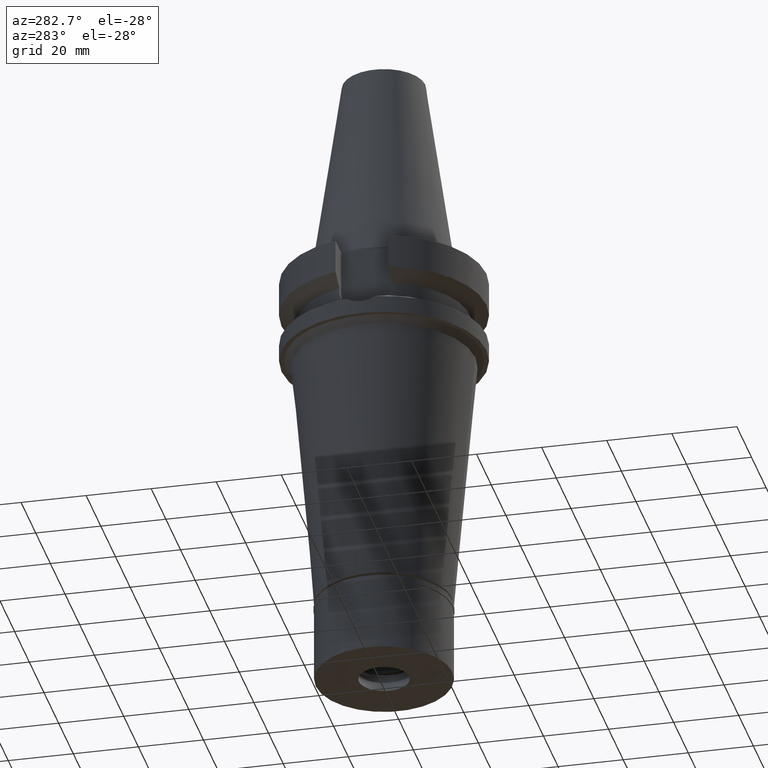
[diagram: clean part render]
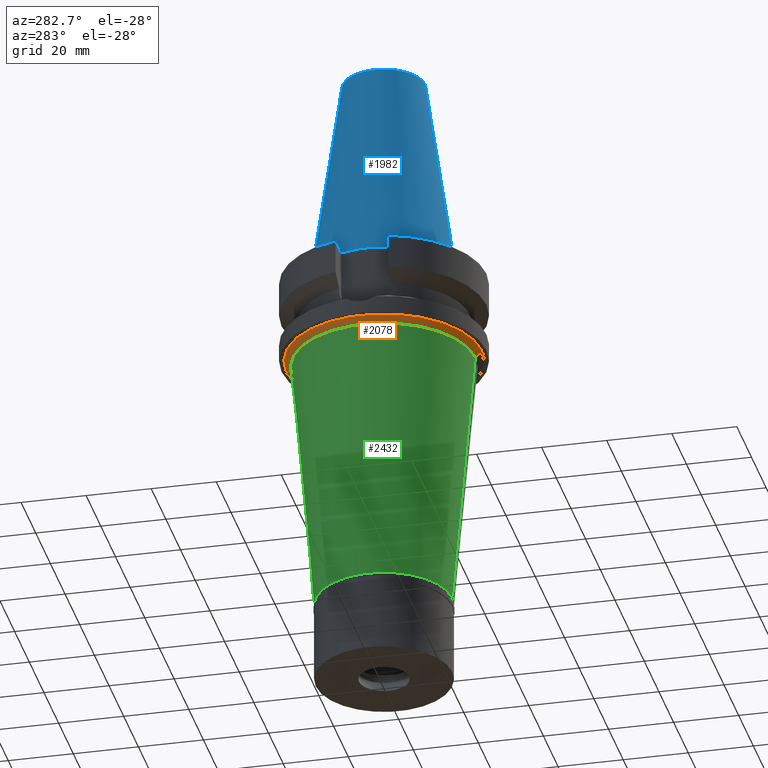
[diagram: same view with three faces highlighted in distinct colors, each labeled with its STEP entity id]
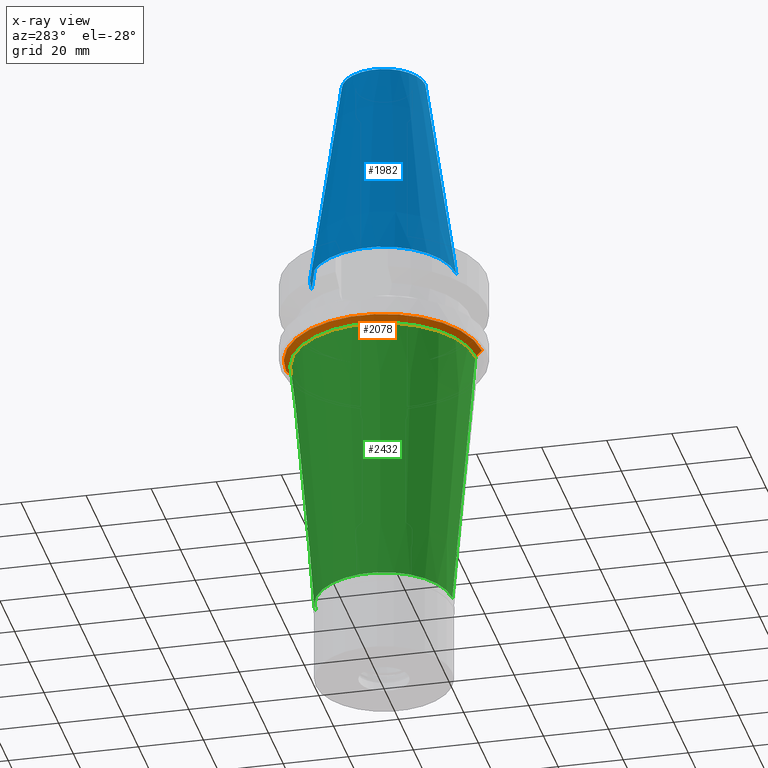
[diagram: x-ray of the same camera — body ghosted, the three highlighted faces saturated]
A machine part, auxiliary view with three faces highlighted in distinct colors.
The next image is the same camera in x-ray (body ghosted, the three faces saturated) — at least one of them is partly hidden behind the body in this view.
Their STEP definitions:

[orange] entity #2078 — the highlighted conical surface has half-angle 45 deg.
#23 = VERTEX_POINT ( 'NONE', #1060 ) ;
#64 = LINE ( 'NONE', #1254, #971 ) ;
#205 = DIRECTION ( 'NONE',  ( 0.0000000000000000000, -1.000000000000000000, 0.0000000000000000000 ) ) ;
#215 = VERTEX_POINT ( 'NONE', #2937 ) ;
#254 = ORIENTED_EDGE ( 'NONE', *, *, #2730, .F. ) ;
#463 = CIRCLE ( 'NONE', #1731, 30.07783287924999627 ) ;
#467 = LINE ( 'NONE', #938, #1740 ) ;
#551 = ORIENTED_EDGE ( 'NONE', *, *, #1288, .F. ) ;
#557 = CIRCLE ( 'NONE', #2355, 28.07783287924999982 ) ;
#659 = EDGE_CURVE ( 'NONE', #1757, #215, #467, .T. ) ;
#784 = DIRECTION ( 'NONE',  ( 0.0000000000000000000, -1.000000000000000000, 0.0000000000000000000 ) ) ;
#840 = EDGE_LOOP ( 'NONE', ( #254, #551, #1630, #2893 ) ) ;
#889 = CARTESIAN_POINT ( 'NONE',  ( 0.0000000000000000000, 0.0000000000000000000, -28.00000000000000000 ) ) ;
#924 = DIRECTION ( 'NONE',  ( 0.0000000000000000000, 0.0000000000000000000, -1.000000000000000000 ) ) ;
#938 = CARTESIAN_POINT ( 'NONE',  ( 0.0000000000000000000, 30.07783287924999627, -27.00000000000000000 ) ) ;
#971 = VECTOR ( 'NONE', #1275, 1000.000000000000000 ) ;
#1060 = CARTESIAN_POINT ( 'NONE',  ( 0.0000000000000000000, -30.07783287924999627, -27.00000000000000000 ) ) ;
#1254 = CARTESIAN_POINT ( 'NONE',  ( 0.0000000000000000000, -30.07783287924999627, -27.00000000000000000 ) ) ;
#1258 = DIRECTION ( 'NONE',  ( 0.0000000000000000000, 0.0000000000000000000, -1.000000000000000000 ) ) ;
#1275 = DIRECTION ( 'NONE',  ( 0.0000000000000000000, 0.7071067811871469821, -0.7071067811859480523 ) ) ;
#1288 = EDGE_CURVE ( 'NONE', #23, #2061, #64, .T. ) ;
#1519 = CARTESIAN_POINT ( 'NONE',  ( 0.0000000000000000000, 0.0000000000000000000, -29.00000000000000000 ) ) ;
#1630 = ORIENTED_EDGE ( 'NONE', *, *, #2470, .T. ) ;
#1641 = DIRECTION ( 'NONE',  ( 0.0000000000000000000, 1.000000000000000000, 0.0000000000000000000 ) ) ;
#1683 = CONICAL_SURFACE ( 'NONE', #2955, 29.07783287924999982, 0.7853981633972997312 ) ;
#1731 = AXIS2_PLACEMENT_3D ( 'NONE', #2504, #1258, #784 ) ;
#1740 = VECTOR ( 'NONE', #1904, 1000.000000000000000 ) ;
#1757 = VERTEX_POINT ( 'NONE', #2224 ) ;
#1878 = CARTESIAN_POINT ( 'NONE',  ( 0.0000000000000000000, -28.07783287924999982, -29.00000000000000000 ) ) ;
#1904 = DIRECTION ( 'NONE',  ( 0.0000000000000000000, -0.7071067811871469821, -0.7071067811859480523 ) ) ;
#2061 = VERTEX_POINT ( 'NONE', #1878 ) ;
#2078 = ADVANCED_FACE ( 'NONE', ( #3076 ), #1683, .T. ) ;
#2224 = CARTESIAN_POINT ( 'NONE',  ( 0.0000000000000000000, 30.07783287924999627, -27.00000000000000000 ) ) ;
#2355 = AXIS2_PLACEMENT_3D ( 'NONE', #1519, #924, #205 ) ;
#2470 = EDGE_CURVE ( 'NONE', #23, #1757, #463, .T. ) ;
#2504 = CARTESIAN_POINT ( 'NONE',  ( 0.0000000000000000000, 0.0000000000000000000, -27.00000000000000000 ) ) ;
#2635 = DIRECTION ( 'NONE',  ( 0.0000000000000000000, 0.0000000000000000000, 1.000000000000000000 ) ) ;
#2730 = EDGE_CURVE ( 'NONE', #2061, #215, #557, .T. ) ;
#2893 = ORIENTED_EDGE ( 'NONE', *, *, #659, .T. ) ;
#2937 = CARTESIAN_POINT ( 'NONE',  ( 0.0000000000000000000, 28.07783287924999982, -29.00000000000000000 ) ) ;
#2955 = AXIS2_PLACEMENT_3D ( 'NONE', #889, #2635, #1641 ) ;
#3076 = FACE_OUTER_BOUND ( 'NONE', #840, .T. ) ;

[blue] entity #1982 — the highlighted conical surface has half-angle 8.297 deg.
#25 = VERTEX_POINT ( 'NONE', #2777 ) ;
#196 = ORIENTED_EDGE ( 'NONE', *, *, #2507, .T. ) ;
#233 = VECTOR ( 'NONE', #883, 1000.000000000000114 ) ;
#306 = AXIS2_PLACEMENT_3D ( 'NONE', #2157, #3120, #1171 ) ;
#316 = CARTESIAN_POINT ( 'NONE',  ( 0.0000000000000000000, 1.625106302469000024E-14, 2.842170943039999687E-14 ) ) ;
#657 = DIRECTION ( 'NONE',  ( 0.0000000000000000000, 0.0000000000000000000, -1.000000000000000000 ) ) ;
#801 = DIRECTION ( 'NONE',  ( 0.0000000000000000000, -1.000000000000000000, 0.0000000000000000000 ) ) ;
#849 = EDGE_CURVE ( 'NONE', #25, #1640, #979, .T. ) ;
#883 = DIRECTION ( 'NONE',  ( 0.0000000000000000000, 0.1443043893539925626, -0.9895333461855498891 ) ) ;
#979 = LINE ( 'NONE', #2967, #2253 ) ;
#1114 = LINE ( 'NONE', #2595, #233 ) ;
#1171 = DIRECTION ( 'NONE',  ( 0.0000000000000000000, -1.000000000000000000, 0.0000000000000000000 ) ) ;
#1377 = EDGE_LOOP ( 'NONE', ( #2974, #2549, #196, #2080 ) ) ;
#1602 = EDGE_CURVE ( 'NONE', #1888, #2949, #1114, .T. ) ;
#1604 = FACE_OUTER_BOUND ( 'NONE', #1377, .T. ) ;
#1640 = VERTEX_POINT ( 'NONE', #2376 ) ;
#1674 = CARTESIAN_POINT ( 'NONE',  ( 0.0000000000000000000, 1.625106302469000024E-14, 32.70000000000000284 ) ) ;
#1686 = CIRCLE ( 'NONE', #306, 12.68766899429999917 ) ;
#1729 = CONICAL_SURFACE ( 'NONE', #2605, 17.45633449714999941, 0.1448099680379422438 ) ;
#1888 = VERTEX_POINT ( 'NONE', #2798 ) ;
#1897 = DIRECTION ( 'NONE',  ( 0.0000000000000000000, -1.000000000000000000, 0.0000000000000000000 ) ) ;
#1909 = EDGE_CURVE ( 'NONE', #1640, #2949, #2196, .T. ) ;
#1982 = ADVANCED_FACE ( 'NONE', ( #1604 ), #1729, .T. ) ;
#1988 = AXIS2_PLACEMENT_3D ( 'NONE', #316, #2075, #801 ) ;
#2011 = DIRECTION ( 'NONE',  ( 0.0000000000000000000, -0.1443043893539925626, -0.9895333461855498891 ) ) ;
#2075 = DIRECTION ( 'NONE',  ( 0.0000000000000000000, 0.0000000000000000000, -1.000000000000000000 ) ) ;
#2080 = ORIENTED_EDGE ( 'NONE', *, *, #1602, .T. ) ;
#2150 = CARTESIAN_POINT ( 'NONE',  ( 0.0000000000000000000, 22.22500000000000142, 6.394884621841000123E-14 ) ) ;
#2157 = CARTESIAN_POINT ( 'NONE',  ( 0.0000000000000000000, 1.625106302469000024E-14, 65.40000000000000568 ) ) ;
#2196 = CIRCLE ( 'NONE', #1988, 22.22500000000000142 ) ;
#2253 = VECTOR ( 'NONE', #2011, 1000.000000000000114 ) ;
#2376 = CARTESIAN_POINT ( 'NONE',  ( 0.0000000000000000000, -22.22500000000000142, 6.394884621841000123E-14 ) ) ;
#2507 = EDGE_CURVE ( 'NONE', #25, #1888, #1686, .T. ) ;
#2549 = ORIENTED_EDGE ( 'NONE', *, *, #849, .F. ) ;
#2595 = CARTESIAN_POINT ( 'NONE',  ( 0.0000000000000000000, 12.68766899429999917, 65.40000000000000568 ) ) ;
#2605 = AXIS2_PLACEMENT_3D ( 'NONE', #1674, #657, #1897 ) ;
#2777 = CARTESIAN_POINT ( 'NONE',  ( 0.0000000000000000000, -12.68766899429999917, 65.40000000000000568 ) ) ;
#2798 = CARTESIAN_POINT ( 'NONE',  ( 0.0000000000000000000, 12.68766899429999917, 65.40000000000000568 ) ) ;
#2949 = VERTEX_POINT ( 'NONE', #2150 ) ;
#2967 = CARTESIAN_POINT ( 'NONE',  ( 0.0000000000000000000, -12.68766899429999917, 65.40000000000000568 ) ) ;
#2974 = ORIENTED_EDGE ( 'NONE', *, *, #1909, .F. ) ;
#3120 = DIRECTION ( 'NONE',  ( 0.0000000000000000000, 0.0000000000000000000, -1.000000000000000000 ) ) ;

[green] entity #2432 — the highlighted conical surface has half-angle 5 deg.
#9 = LINE ( 'NONE', #1462, #808 ) ;
#62 = AXIS2_PLACEMENT_3D ( 'NONE', #1085, #1064, #342 ) ;
#205 = DIRECTION ( 'NONE',  ( 0.0000000000000000000, -1.000000000000000000, 0.0000000000000000000 ) ) ;
#215 = VERTEX_POINT ( 'NONE', #2937 ) ;
#230 = VERTEX_POINT ( 'NONE', #1922 ) ;
#270 = CARTESIAN_POINT ( 'NONE',  ( 0.0000000000000000000, 21.00000000000000000, -109.8999999999999915 ) ) ;
#284 = ORIENTED_EDGE ( 'NONE', *, *, #2675, .T. ) ;
#342 = DIRECTION ( 'NONE',  ( 0.0000000000000000000, 1.000000000000000000, 0.0000000000000000000 ) ) ;
#557 = CIRCLE ( 'NONE', #2355, 28.07783287924999982 ) ;
#808 = VECTOR ( 'NONE', #1947, 1000.000000000000227 ) ;
#816 = FACE_OUTER_BOUND ( 'NONE', #2994, .T. ) ;
#924 = DIRECTION ( 'NONE',  ( 0.0000000000000000000, 0.0000000000000000000, -1.000000000000000000 ) ) ;
#1064 = DIRECTION ( 'NONE',  ( 0.0000000000000000000, 0.0000000000000000000, 1.000000000000000000 ) ) ;
#1085 = CARTESIAN_POINT ( 'NONE',  ( 0.0000000000000000000, 0.0000000000000000000, -69.45000000000000284 ) ) ;
#1202 = ORIENTED_EDGE ( 'NONE', *, *, #2313, .F. ) ;
#1223 = VECTOR ( 'NONE', #1861, 1000.000000000000227 ) ;
#1266 = CONICAL_SURFACE ( 'NONE', #62, 24.53891643961999947, 0.08726646259969973729 ) ;
#1361 = ORIENTED_EDGE ( 'NONE', *, *, #2730, .T. ) ;
#1362 = DIRECTION ( 'NONE',  ( 0.0000000000000000000, 0.0000000000000000000, 1.000000000000000000 ) ) ;
#1417 = CARTESIAN_POINT ( 'NONE',  ( 0.0000000000000000000, 0.0000000000000000000, -109.8999999999999915 ) ) ;
#1424 = LINE ( 'NONE', #1881, #1223 ) ;
#1462 = CARTESIAN_POINT ( 'NONE',  ( 0.0000000000000000000, -28.07783287924999982, -29.00000000000000000 ) ) ;
#1519 = CARTESIAN_POINT ( 'NONE',  ( 0.0000000000000000000, 0.0000000000000000000, -29.00000000000000000 ) ) ;
#1628 = CIRCLE ( 'NONE', #2194, 21.00000000000000000 ) ;
#1861 = DIRECTION ( 'NONE',  ( 0.0000000000000000000, -0.08715574274768382590, -0.9961946980917432137 ) ) ;
#1878 = CARTESIAN_POINT ( 'NONE',  ( 0.0000000000000000000, -28.07783287924999982, -29.00000000000000000 ) ) ;
#1881 = CARTESIAN_POINT ( 'NONE',  ( 0.0000000000000000000, 28.07783287924999982, -29.00000000000000000 ) ) ;
#1922 = CARTESIAN_POINT ( 'NONE',  ( 0.0000000000000000000, -21.00000000000000000, -109.8999999999999915 ) ) ;
#1947 = DIRECTION ( 'NONE',  ( 0.0000000000000000000, 0.08715574274768382590, -0.9961946980917432137 ) ) ;
#2061 = VERTEX_POINT ( 'NONE', #1878 ) ;
#2192 = VERTEX_POINT ( 'NONE', #270 ) ;
#2194 = AXIS2_PLACEMENT_3D ( 'NONE', #1417, #1362, #2344 ) ;
#2313 = EDGE_CURVE ( 'NONE', #2061, #230, #9, .T. ) ;
#2344 = DIRECTION ( 'NONE',  ( 0.0000000000000000000, 1.000000000000000000, 0.0000000000000000000 ) ) ;
#2355 = AXIS2_PLACEMENT_3D ( 'NONE', #1519, #924, #205 ) ;
#2432 = ADVANCED_FACE ( 'NONE', ( #816 ), #1266, .T. ) ;
#2649 = EDGE_CURVE ( 'NONE', #2192, #230, #1628, .T. ) ;
#2675 = EDGE_CURVE ( 'NONE', #215, #2192, #1424, .T. ) ;
#2730 = EDGE_CURVE ( 'NONE', #2061, #215, #557, .T. ) ;
#2937 = CARTESIAN_POINT ( 'NONE',  ( 0.0000000000000000000, 28.07783287924999982, -29.00000000000000000 ) ) ;
#2982 = ORIENTED_EDGE ( 'NONE', *, *, #2649, .T. ) ;
#2994 = EDGE_LOOP ( 'NONE', ( #2982, #1202, #1361, #284 ) ) ;